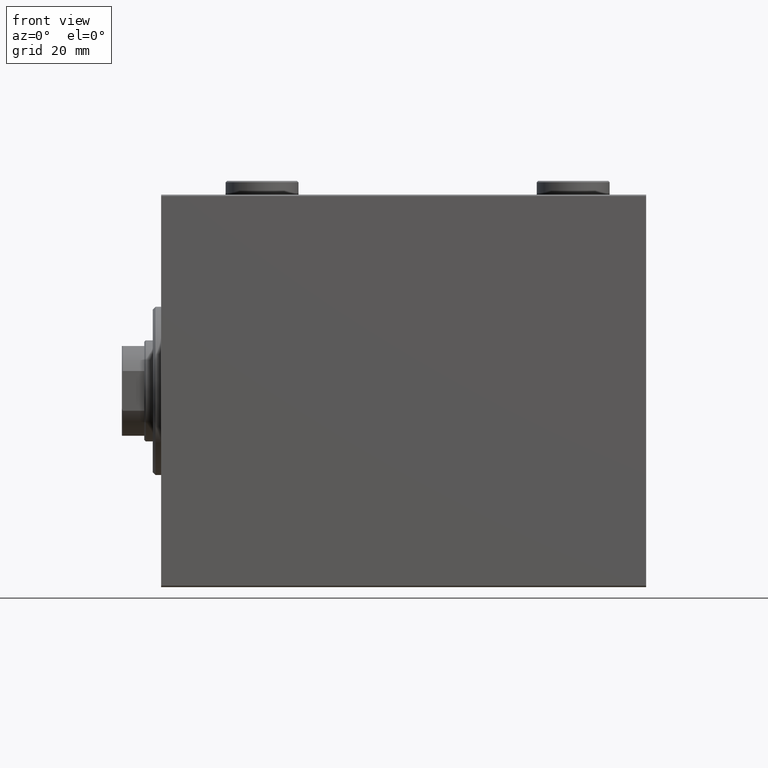
[diagram: clean part render]
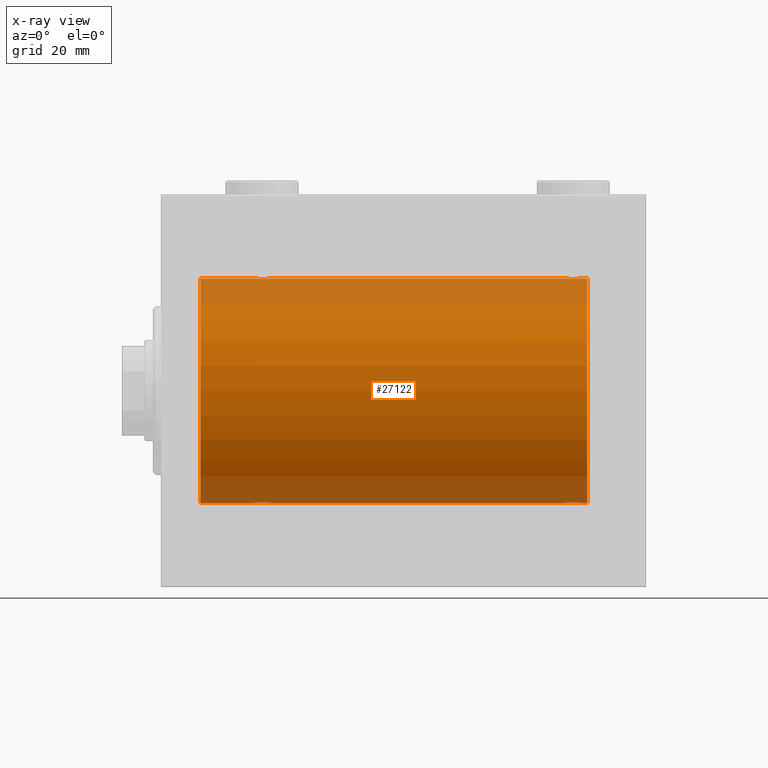
[diagram: x-ray — body ghosted, one internal face saturated and labeled with its STEP entity id]
A machine part, front view, then the same camera in x-ray: the body is ghosted and one INTERNAL B-rep face — a face not visible from any outside direction — is saturated and labeled: STEP entity #27122.
In plain terms, the highlighted cylindrical surface (partial cylindrical patch) has radius 40 mm, axis along (-1, -0, -0).
Its self-contained STEP definition (entity closure, byte-faithful):
#136 = CARTESIAN_POINT ( 'NONE',  ( 146.7995871398080112, -2.999840380514742666, 39.88735335562825668 ) ) ;
#158 = DIRECTION ( 'NONE',  ( -1.000000000000000000, -0.000000000000000000, -0.000000000000000000 ) ) ;
#220 = ORIENTED_EDGE ( 'NONE', *, *, #1079, .T. ) ;
#810 = CARTESIAN_POINT ( 'NONE',  ( 149.9202617499165342, -0.7903958539027363672, 39.99381900068937767 ) ) ;
#1079 = EDGE_CURVE ( 'NONE', #20565, #22216, #36720, .T. ) ;
#1498 = CARTESIAN_POINT ( 'NONE',  ( 150.0000000000000284, -0.3964922677423700081, 40.00000000000001421 ) ) ;
#1619 = DIRECTION ( 'NONE',  ( -1.000000000000000000, -0.000000000000000000, -0.000000000000000000 ) ) ;
#1936 = CARTESIAN_POINT ( 'NONE',  ( 38.25829670320502629, -1.984537326394305801, 39.95097977400578060 ) ) ;
#2045 = CARTESIAN_POINT ( 'NONE',  ( 38.99999999999999289, -0.1957844162750510819, -40.00000000000000711 ) ) ;
#2278 = CARTESIAN_POINT ( 'NONE',  ( 35.03510674146484405, -2.847401743820449305, -39.89859630624607689 ) ) ;
#2502 = CARTESIAN_POINT ( 'NONE',  ( 35.80439468926913804, -3.000157693440631324, -39.88732948994960026 ) ) ;
#2623 = CARTESIAN_POINT ( 'NONE',  ( 38.60188728128492386, -1.506322235190783232, 39.97196309111974699 ) ) ;
#2726 = CARTESIAN_POINT ( 'NONE',  ( 37.98461447812278635, -2.258217541132897743, -39.93644519243654400 ) ) ;
#3141 = CARTESIAN_POINT ( 'NONE',  ( 148.9813627951423030, -2.261082456166709775, 39.93628274425758207 ) ) ;
#3230 = CARTESIAN_POINT ( 'NONE',  ( 145.6714635525370625, -2.696981015661925163, -39.90904630908467965 ) ) ;
#3456 = CARTESIAN_POINT ( 'NONE',  ( 149.8466527301314102, -0.9668189122103265642, -39.98872185468383122 ) ) ;
#3460 = CARTESIAN_POINT ( 'NONE',  ( 150.0000000000000284, 1.446721683758770418E-15, 40.00000000000000000 ) ) ;
#4222 = VECTOR ( 'NONE', #41917, 1000.000000000000000 ) ;
#4645 = ORIENTED_EDGE ( 'NONE', *, *, #29073, .T. ) ;
#4999 = CARTESIAN_POINT ( 'NONE',  ( 39.00000000000000000, 4.898587181754971267E-15, -40.00000000000000000 ) ) ;
#5187 = CARTESIAN_POINT ( 'NONE',  ( 33.39566400087915810, -1.502129635934004614, 39.97212271185186694 ) ) ;
#5734 = CARTESIAN_POINT ( 'NONE',  ( 36.77869523415743913, -2.903766417398228938, -39.89448096967571900 ) ) ;
#5742 = DIRECTION ( 'NONE',  ( -1.000000000000000000, -0.000000000000000000, -0.000000000000000000 ) ) ;
#6009 = CARTESIAN_POINT ( 'NONE',  ( 144.7417032967949808, -1.984537326394312906, -39.95097977400578770 ) ) ;
#6427 = CARTESIAN_POINT ( 'NONE',  ( 38.26097616994740491, -1.981471132463162643, -39.95113231465139592 ) ) ;
#6619 = CARTESIAN_POINT ( 'NONE',  ( 145.0153855218772208, -2.258217541132898631, 39.93644519243653690 ) ) ;
#6675 = DIRECTION ( 'NONE',  ( 0.000000000000000000, 0.000000000000000000, 1.000000000000000000 ) ) ;
#6932 = CARTESIAN_POINT ( 'NONE',  ( 144.3981127187151685, -1.506322235190792780, -39.97196309111976831 ) ) ;
#7075 = CARTESIAN_POINT ( 'NONE',  ( 144.3027865941912182, -1.327859336864145590, 39.97836169682017982 ) ) ;
#7154 = CARTESIAN_POINT ( 'NONE',  ( 144.0000000000000284, -8.638112143271993746E-15, -40.00000000000000000 ) ) ;
#7199 = AXIS2_PLACEMENT_3D ( 'NONE', #20037, #13353, #34112 ) ;
#7308 = CARTESIAN_POINT ( 'NONE',  ( 144.6149239908465063, -1.830402106103516280, 39.95843610133492518 ) ) ;
#7553 = LINE ( 'NONE', #14709, #30997 ) ;
#7621 = ORIENTED_EDGE ( 'NONE', *, *, #38939, .T. ) ;
#7754 = CARTESIAN_POINT ( 'NONE',  ( 149.6018872812850020, -1.506322235190787895, 39.97196309111976831 ) ) ;
#8001 = DIRECTION ( 'NONE',  ( 0.000000000000000000, 0.000000000000000000, 1.000000000000000000 ) ) ;
#8433 = CARTESIAN_POINT ( 'NONE',  ( 149.3825168091146622, -1.833695109615722352, 39.95828327492363030 ) ) ;
#8884 = CARTESIAN_POINT ( 'NONE',  ( 33.15334726986859692, -0.9668189122103387767, 39.98872185468385254 ) ) ;
#9022 = B_SPLINE_CURVE_WITH_KNOTS ( 'NONE', 3,
 ( #30563, #33796, #41431, #16254, #8884, #36820, #5187, #44450, #22972, #30337, #40975, #19277, #44679, #40750, #19499, #37493, #33352, #12349, #29887, #13031, #26422, #26882, #12803, #23650, #40527, #1936, #19953, #2623, #34259, #16710, #27109, #34027 ),
 .UNSPECIFIED., .F., .F.,
 ( 4, 2, 2, 2, 2, 2, 2, 2, 2, 2, 2, 2, 2, 2, 2, 4 ),
 ( 0.009382660366305105304, 0.009968941372944142842, 0.01055522237958318038, 0.01114150338622221965, 0.01172778439286125719, 0.01231406539950029473, 0.01290034640613933400, 0.01348662741277837154, 0.01407290841941740908, 0.01465918942605644835, 0.01524547043269548416, 0.01583175143933452517, 0.01641803244597356271, 0.01700431345261260024, 0.01759059445925163778, 0.01876315647252971286 ),
 .UNSPECIFIED. ) ;
#9896 = CARTESIAN_POINT ( 'NONE',  ( 38.38507600915353635, -1.830402106103512505, -39.95843610133493229 ) ) ;
#9932 = CARTESIAN_POINT ( 'NONE',  ( 149.9810187711093192, -0.3904143323715896785, -39.99856256910220509 ) ) ;
#10388 = CARTESIAN_POINT ( 'NONE',  ( 148.5044308291346908, -2.602909538701760006, -39.91537030566259148 ) ) ;
#10537 = CARTESIAN_POINT ( 'NONE',  ( 149.2582967032050760, -1.984537326394308909, 39.95097977400577349 ) ) ;
#10619 = CARTESIAN_POINT ( 'NONE',  ( 146.0351067414649151, -2.847401743820456854, -39.89859630624609110 ) ) ;
#10995 = CARTESIAN_POINT ( 'NONE',  ( 144.0957482634864846, -0.7773146824711021363, 39.99291453282343412 ) ) ;
#11379 = CARTESIAN_POINT ( 'NONE',  ( 32.99999999999999289, -1.483452932268112700E-23, 40.00000000000000000 ) ) ;
#11579 = EDGE_LOOP ( 'NONE', ( #22682, #27219, #38944, #220, #40636, #45298, #4645, #40605, #7621, #14097, #41951, #26354 ) ) ;
#11856 = DIRECTION ( 'NONE',  ( -1.000000000000000000, -0.000000000000000000, -0.000000000000000000 ) ) ;
#12165 = CARTESIAN_POINT ( 'NONE',  ( 152.0000000000000000, 4.898587196589413026E-15, -40.00000000000000000 ) ) ;
#12349 = CARTESIAN_POINT ( 'NONE',  ( 36.19560531073086906, -3.000157693440643758, 39.88732948994960026 ) ) ;
#12584 = CARTESIAN_POINT ( 'NONE',  ( 13.99999999999998401, 0.000000000000000000, 40.00000000000000000 ) ) ;
#12803 = CARTESIAN_POINT ( 'NONE',  ( 37.50088468404035069, -2.604941918888315833, 39.91523680494983495 ) ) ;
#13031 = CARTESIAN_POINT ( 'NONE',  ( 36.77455678826341057, -2.904869018727228358, 39.89440043036668015 ) ) ;
#13334 = CARTESIAN_POINT ( 'NONE',  ( 152.0000000000000000, 4.898587196589413026E-15, -40.00000000000000000 ) ) ;
#13353 = DIRECTION ( 'NONE',  ( -1.000000000000000000, 0.000000000000000000, 0.000000000000000000 ) ) ;
#13552 = CARTESIAN_POINT ( 'NONE',  ( 147.1956053107309685, -3.000157693440639761, 39.88732948994960736 ) ) ;
#13601 = CARTESIAN_POINT ( 'NONE',  ( 33.61748319088535908, -1.833695109615714802, -39.95828327492363741 ) ) ;
#13769 = LINE ( 'NONE', #16994, #34558 ) ;
#13862 = CARTESIAN_POINT ( 'NONE',  ( 147.3952248345357816, -2.980272303779548881, -39.88883864243168631 ) ) ;
#14008 = CARTESIAN_POINT ( 'NONE',  ( 145.6677573113414326, -2.695129988695745826, 39.90917164320281074 ) ) ;
#14097 = ORIENTED_EDGE ( 'NONE', *, *, #19055, .F. ) ;
#14238 = CARTESIAN_POINT ( 'NONE',  ( 144.0000000000000284, -1.482387970046064334E-23, 40.00000000000000000 ) ) ;
#14709 = CARTESIAN_POINT ( 'NONE',  ( 152.0000000000000000, 4.898587196589413026E-15, -40.00000000000000000 ) ) ;
#15355 = CARTESIAN_POINT ( 'NONE',  ( 150.0000000000000284, 1.446721683758770418E-15, 40.00000000000000000 ) ) ;
#15810 = B_SPLINE_CURVE_WITH_KNOTS ( 'NONE', 3,
 ( #14238, #17922, #31997, #10995, #31308, #7075, #31078, #7308, #45192, #6619, #31534, #21158, #14008, #25078, #17690, #20466, #136, #13552, #27622, #41715, #35463, #24157, #20707, #28083, #3141, #10537, #8433, #7754, #32447, #810, #1498, #15355 ),
 .UNSPECIFIED., .F., .F.,
 ( 4, 2, 2, 2, 2, 2, 2, 2, 2, 2, 2, 2, 2, 2, 2, 4 ),
 ( 0.009382660366305094896, 0.009968941372944130699, 0.01055522237958316650, 0.01114150338622220404, 0.01172778439286123985, 0.01231406539950027565, 0.01290034640613930972, 0.01348662741277834379, 0.01407290841941737959, 0.01465918942605641540, 0.01524547043269544946, 0.01583175143933448353, 0.01641803244597352107, 0.01700431345261255514, 0.01759059445925158921, 0.01876315647252969204 ),
 .UNSPECIFIED. ) ;
#16029 = EDGE_CURVE ( 'NONE', #44920, #35489, #15810, .T. ) ;
#16062 = LINE ( 'NONE', #12165, #17769 ) ;
#16133 = CARTESIAN_POINT ( 'NONE',  ( 38.90425173651351543, -0.7773146824710984726, -39.99291453282344122 ) ) ;
#16254 = CARTESIAN_POINT ( 'NONE',  ( 33.09574826348647036, -0.7773146824711036906, 39.99291453282343412 ) ) ;
#16362 = CARTESIAN_POINT ( 'NONE',  ( 37.83044822822401443, -2.384933850258100119, -39.92898715513241115 ) ) ;
#16585 = CARTESIAN_POINT ( 'NONE',  ( 36.96938341894465907, -2.845855236045336856, -39.89870693240651178 ) ) ;
#16710 = CARTESIAN_POINT ( 'NONE',  ( 38.92026174991647025, -0.7903958539027386987, 39.99381900068935636 ) ) ;
#16819 = CARTESIAN_POINT ( 'NONE',  ( 36.39522483453576029, -2.980272303779541332, -39.88883864243169342 ) ) ;
#16855 = CARTESIAN_POINT ( 'NONE',  ( 150.0000000000000284, 4.898587181765620889E-15, -40.00000000000000000 ) ) ;
#16866 = CARTESIAN_POINT ( 'NONE',  ( 144.0000000000000284, -8.638112143271993746E-15, -40.00000000000000000 ) ) ;
#16994 = CARTESIAN_POINT ( 'NONE',  ( 152.0000000000000000, 0.000000000000000000, 40.00000000000000000 ) ) ;
#16997 = VERTEX_POINT ( 'NONE', #12584 ) ;
#17049 = CARTESIAN_POINT ( 'NONE',  ( 33.74170329679496660, -1.984537326394300250, -39.95097977400577349 ) ) ;
#17083 = CARTESIAN_POINT ( 'NONE',  ( 149.3850760091536642, -1.830402106103521831, -39.95843610133494650 ) ) ;
#17314 = CARTESIAN_POINT ( 'NONE',  ( 148.9846144781228929, -2.258217541132900852, -39.93644519243655111 ) ) ;
#17375 = B_SPLINE_CURVE_WITH_KNOTS ( 'NONE', 3,
 ( #23295, #2045, #40853, #16133, #38064, #37372, #41536, #9896, #6427, #2726, #16362, #30443, #26991, #16585, #5734, #16819, #30662, #2502, #44781, #33909, #2278, #23528, #27443, #23984, #20520, #17049, #13601, #27671, #35683, #32894, #28980, #21832 ),
 .UNSPECIFIED., .F., .F.,
 ( 4, 2, 2, 2, 2, 2, 2, 2, 2, 2, 2, 2, 2, 2, 2, 4 ),
 ( 0.009382660366305110508, 0.009968941372944146312, 0.01055522237958318212, 0.01114150338622221792, 0.01172778439286125372, 0.01231406539950028953, 0.01290034640613932533, 0.01348662741277836113, 0.01407290841941739694, 0.01465918942605643274, 0.01524547043269546855, 0.01583175143933450435, 0.01641803244597354189, 0.01700431345261257596, 0.01759059445925161003, 0.01876315647252968163 ),
 .UNSPECIFIED. ) ;
#17543 = CARTESIAN_POINT ( 'NONE',  ( 144.0797382500836079, -0.7903958539027432506, -39.99381900068937767 ) ) ;
#17690 = CARTESIAN_POINT ( 'NONE',  ( 146.2213047658425467, -2.903766417398230271, 39.89448096967571189 ) ) ;
#17769 = VECTOR ( 'NONE', #30149, 1000.000000000000000 ) ;
#17922 = CARTESIAN_POINT ( 'NONE',  ( 144.0000000000000284, -0.1957844162750525807, 40.00000000000000000 ) ) ;
#18332 = AXIS2_PLACEMENT_3D ( 'NONE', #24214, #5742, #6675 ) ;
#18734 = VERTEX_POINT ( 'NONE', #32924 ) ;
#19055 = EDGE_CURVE ( 'NONE', #44920, #21915, #24598, .T. ) ;
#19127 = CIRCLE ( 'NONE', #27993, 40.00000000000000000 ) ;
#19277 = CARTESIAN_POINT ( 'NONE',  ( 34.49556917086533758, -2.602909538701760006, 39.91537030566259148 ) ) ;
#19499 = CARTESIAN_POINT ( 'NONE',  ( 35.22130476584258219, -2.903766417398241373, 39.89448096967571189 ) ) ;
#19528 = EDGE_CURVE ( 'NONE', #28233, #35667, #23439, .T. ) ;
#19838 = CYLINDRICAL_SURFACE ( 'NONE', #18332, 40.00000000000000000 ) ;
#19953 = CARTESIAN_POINT ( 'NONE',  ( 38.38251680911464803, -1.833695109615718355, 39.95828327492363741 ) ) ;
#20037 = CARTESIAN_POINT ( 'NONE',  ( 152.0000000000000000, 0.000000000000000000, 0.000000000000000000 ) ) ;
#20466 = CARTESIAN_POINT ( 'NONE',  ( 146.6047751654642468, -2.980272303779546217, 39.88883864243170052 ) ) ;
#20520 = CARTESIAN_POINT ( 'NONE',  ( 34.01863720485770415, -2.261082456166700005, -39.93628274425758917 ) ) ;
#20556 = CARTESIAN_POINT ( 'NONE',  ( 148.8304482282240713, -2.384933850258111221, -39.92898715513241825 ) ) ;
#20565 = VERTEX_POINT ( 'NONE', #16866 ) ;
#20707 = CARTESIAN_POINT ( 'NONE',  ( 148.5008846840404146, -2.604941918888313612, 39.91523680494984916 ) ) ;
#20791 = CARTESIAN_POINT ( 'NONE',  ( 146.6089030749067490, -2.980812880639900353, -39.88879797994690080 ) ) ;
#21158 = CARTESIAN_POINT ( 'NONE',  ( 145.4955691708653092, -2.602909538701757342, 39.91537030566259858 ) ) ;
#21832 = CARTESIAN_POINT ( 'NONE',  ( 32.99999999999999289, 4.605585004310627937E-15, -40.00000000000000000 ) ) ;
#21915 = VERTEX_POINT ( 'NONE', #42037 ) ;
#21924 = EDGE_CURVE ( 'NONE', #37930, #20565, #33098, .T. ) ;
#22216 = VERTEX_POINT ( 'NONE', #4999 ) ;
#22247 = LINE ( 'NONE', #32856, #23538 ) ;
#22682 = ORIENTED_EDGE ( 'NONE', *, *, #19528, .F. ) ;
#22972 = CARTESIAN_POINT ( 'NONE',  ( 33.73902383005257377, -1.981471132463168416, 39.95113231465138881 ) ) ;
#23295 = CARTESIAN_POINT ( 'NONE',  ( 39.00000000000000000, 4.898587181754971267E-15, -40.00000000000000000 ) ) ;
#23439 = CIRCLE ( 'NONE', #7199, 40.00000000000000000 ) ;
#23528 = CARTESIAN_POINT ( 'NONE',  ( 34.67146355253704826, -2.696981015661917613, -39.90904630908468675 ) ) ;
#23538 = VECTOR ( 'NONE', #11856, 1000.000000000000000 ) ;
#23650 = CARTESIAN_POINT ( 'NONE',  ( 37.82690184632411246, -2.387636253591820079, 39.92882473497731866 ) ) ;
#23984 = CARTESIAN_POINT ( 'NONE',  ( 34.17309815367588754, -2.387636253591812974, -39.92882473497732576 ) ) ;
#24157 = CARTESIAN_POINT ( 'NONE',  ( 148.3285364474630228, -2.696981015661923387, 39.90904630908469386 ) ) ;
#24214 = CARTESIAN_POINT ( 'NONE',  ( 152.0000000000000000, 0.000000000000000000, 0.000000000000000000 ) ) ;
#24249 = CARTESIAN_POINT ( 'NONE',  ( 147.2004128601920740, -2.999840380514743998, -39.88735335562825668 ) ) ;
#24478 = CARTESIAN_POINT ( 'NONE',  ( 145.0186372048577823, -2.261082456166712440, -39.93628274425757496 ) ) ;
#24598 = LINE ( 'NONE', #38685, #4222 ) ;
#24931 = CARTESIAN_POINT ( 'NONE',  ( 144.0000000000000284, -0.3964922677423805553, -40.00000000000000000 ) ) ;
#24995 = CARTESIAN_POINT ( 'NONE',  ( 144.0000000000000284, -1.482387970046064334E-23, 40.00000000000000000 ) ) ;
#25078 = CARTESIAN_POINT ( 'NONE',  ( 146.0306165810553409, -2.845855236045348402, 39.89870693240650468 ) ) ;
#26354 = ORIENTED_EDGE ( 'NONE', *, *, #28814, .F. ) ;
#26422 = CARTESIAN_POINT ( 'NONE',  ( 36.96489325853514174, -2.847401743820462183, 39.89859630624607689 ) ) ;
#26513 = EDGE_CURVE ( 'NONE', #22216, #32528, #17375, .T. ) ;
#26882 = CARTESIAN_POINT ( 'NONE',  ( 37.32853644746295885, -2.696981015661930936, 39.90904630908465833 ) ) ;
#26991 = CARTESIAN_POINT ( 'NONE',  ( 37.33224268865864559, -2.695129988695729839, -39.90917164320280364 ) ) ;
#27109 = CARTESIAN_POINT ( 'NONE',  ( 39.00000000000000711, -0.3964922677423692865, 40.00000000000000711 ) ) ;
#27122 = ADVANCED_FACE ( 'NONE', ( #34832 ), #19838, .F. ) ;
#27219 = ORIENTED_EDGE ( 'NONE', *, *, #43478, .T. ) ;
#27443 = CARTESIAN_POINT ( 'NONE',  ( 34.49911531595966352, -2.604941918888306507, -39.91523680494982784 ) ) ;
#27622 = CARTESIAN_POINT ( 'NONE',  ( 147.3910969250933931, -2.980812880639897688, 39.88879797994690080 ) ) ;
#27671 = CARTESIAN_POINT ( 'NONE',  ( 33.39811271871507614, -1.506322235190781456, -39.97196309111974699 ) ) ;
#27936 = CARTESIAN_POINT ( 'NONE',  ( 145.1730981536759373, -2.387636253591822300, -39.92882473497733287 ) ) ;
#27993 = AXIS2_PLACEMENT_3D ( 'NONE', #36615, #29229, #8001 ) ;
#28083 = CARTESIAN_POINT ( 'NONE',  ( 148.8269018463241480, -2.387636253591820079, 39.92882473497732576 ) ) ;
#28163 = CARTESIAN_POINT ( 'NONE',  ( 150.0000000000000000, -0.1957844162750470851, -39.99999999999999289 ) ) ;
#28233 = VERTEX_POINT ( 'NONE', #13334 ) ;
#28814 = EDGE_CURVE ( 'NONE', #35667, #35489, #22247, .T. ) ;
#28980 = CARTESIAN_POINT ( 'NONE',  ( 32.99999999999998579, -0.3964922677423637909, -39.99999999999998579 ) ) ;
#29073 = EDGE_CURVE ( 'NONE', #18734, #16997, #19127, .T. ) ;
#29229 = DIRECTION ( 'NONE',  ( -1.000000000000000000, 0.000000000000000000, 0.000000000000000000 ) ) ;
#29887 = CARTESIAN_POINT ( 'NONE',  ( 36.39109692509333627, -2.980812880639903906, 39.88879797994688658 ) ) ;
#30149 = DIRECTION ( 'NONE',  ( -1.000000000000000000, -0.000000000000000000, -0.000000000000000000 ) ) ;
#30337 = CARTESIAN_POINT ( 'NONE',  ( 34.01538552187719233, -2.258217541132905293, 39.93644519243653690 ) ) ;
#30443 = CARTESIAN_POINT ( 'NONE',  ( 37.50443082913466242, -2.602909538701748016, -39.91537030566259148 ) ) ;
#30563 = CARTESIAN_POINT ( 'NONE',  ( 32.99999999999999289, -1.483452932268112700E-23, 40.00000000000000000 ) ) ;
#30662 = CARTESIAN_POINT ( 'NONE',  ( 36.20041286019198168, -2.999840380514735116, -39.88735335562824957 ) ) ;
#30940 = CARTESIAN_POINT ( 'NONE',  ( 149.6043359991208490, -1.502129635934011054, -39.97212271185185273 ) ) ;
#30997 = VECTOR ( 'NONE', #158, 1000.000000000000000 ) ;
#31078 = CARTESIAN_POINT ( 'NONE',  ( 144.3956640008792078, -1.502129635934003948, 39.97212271185186694 ) ) ;
#31162 = CARTESIAN_POINT ( 'NONE',  ( 147.9693834189446591, -2.845855236045351067, -39.89870693240651178 ) ) ;
#31308 = CARTESIAN_POINT ( 'NONE',  ( 144.1533472698686182, -0.9668189122103342248, 39.98872185468384544 ) ) ;
#31391 = CARTESIAN_POINT ( 'NONE',  ( 147.7786952341575386, -2.903766417398233823, -39.89448096967571900 ) ) ;
#31534 = CARTESIAN_POINT ( 'NONE',  ( 145.1695517717760424, -2.384933850258109445, 39.92898715513240404 ) ) ;
#31997 = CARTESIAN_POINT ( 'NONE',  ( 144.0189812288907660, -0.3904143323715967839, 39.99856256910221219 ) ) ;
#32447 = CARTESIAN_POINT ( 'NONE',  ( 149.6953700770844193, -1.331594428131642527, 39.97823692017210107 ) ) ;
#32528 = VERTEX_POINT ( 'NONE', #38515 ) ;
#32728 = EDGE_CURVE ( 'NONE', #32528, #18734, #16062, .T. ) ;
#32856 = CARTESIAN_POINT ( 'NONE',  ( 152.0000000000000000, 0.000000000000000000, 40.00000000000000000 ) ) ;
#32894 = CARTESIAN_POINT ( 'NONE',  ( 33.07973825008353685, -0.7903958539027382546, -39.99381900068937767 ) ) ;
#32924 = CARTESIAN_POINT ( 'NONE',  ( 13.99999999999998401, 4.898587196589413026E-15, -40.00000000000000000 ) ) ;
#33098 = B_SPLINE_CURVE_WITH_KNOTS ( 'NONE', 3,
 ( #16855, #28163, #9932, #41800, #3456, #45281, #30940, #17083, #42261, #17314, #20556, #10388, #45055, #31162, #31391, #13862, #24249, #38335, #20791, #34861, #10619, #3230, #45509, #27936, #24478, #6009, #37646, #6932, #35086, #17543, #24931, #7154 ),
 .UNSPECIFIED., .F., .F.,
 ( 4, 2, 2, 2, 2, 2, 2, 2, 2, 2, 2, 2, 2, 2, 2, 4 ),
 ( 0.009382660366305091426, 0.009968941372944125495, 0.01055522237958316130, 0.01114150338622219710, 0.01172778439286123117, 0.01231406539950026524, 0.01290034640613930104, 0.01348662741277833685, 0.01407290841941737092, 0.01465918942605640499, 0.01524547043269544079, 0.01583175143933447659, 0.01641803244597351066, 0.01700431345261254473, 0.01759059445925158227, 0.01876315647252968163 ),
 .UNSPECIFIED. ) ;
#33352 = CARTESIAN_POINT ( 'NONE',  ( 35.79958713980802543, -2.999840380514749327, 39.88735335562824247 ) ) ;
#33796 = CARTESIAN_POINT ( 'NONE',  ( 32.99999999999997158, -0.1957844162750552452, 40.00000000000000000 ) ) ;
#33909 = CARTESIAN_POINT ( 'NONE',  ( 35.22544321173658943, -2.904869018727217700, -39.89440043036668726 ) ) ;
#34027 = CARTESIAN_POINT ( 'NONE',  ( 39.00000000000000000, 1.037715139942869821E-15, 40.00000000000000000 ) ) ;
#34112 = DIRECTION ( 'NONE',  ( 0.000000000000000000, 0.000000000000000000, 1.000000000000000000 ) ) ;
#34259 = CARTESIAN_POINT ( 'NONE',  ( 38.69537007708435539, -1.331594428131644747, 39.97823692017209396 ) ) ;
#34558 = VECTOR ( 'NONE', #38708, 1000.000000000000000 ) ;
#34832 = FACE_OUTER_BOUND ( 'NONE', #11579, .T. ) ;
#34861 = CARTESIAN_POINT ( 'NONE',  ( 146.2254432117366036, -2.904869018727222585, -39.89440043036668726 ) ) ;
#35086 = CARTESIAN_POINT ( 'NONE',  ( 144.3046299229157228, -1.331594428131648522, -39.97823692017211528 ) ) ;
#35463 = CARTESIAN_POINT ( 'NONE',  ( 147.9648932585351702, -2.847401743820454190, 39.89859630624609821 ) ) ;
#35489 = VERTEX_POINT ( 'NONE', #3460 ) ;
#35667 = VERTEX_POINT ( 'NONE', #45001 ) ;
#35683 = CARTESIAN_POINT ( 'NONE',  ( 33.30462992291564461, -1.331594428131640528, -39.97823692017208685 ) ) ;
#35924 = VECTOR ( 'NONE', #1619, 1000.000000000000000 ) ;
#36615 = CARTESIAN_POINT ( 'NONE',  ( 13.99999999999998401, 0.000000000000000000, 0.000000000000000000 ) ) ;
#36720 = LINE ( 'NONE', #39979, #35924 ) ;
#36820 = CARTESIAN_POINT ( 'NONE',  ( 33.30278659419118270, -1.327859336864150253, 39.97836169682017982 ) ) ;
#37096 = CARTESIAN_POINT ( 'NONE',  ( 150.0000000000000284, 4.898587181765620889E-15, -40.00000000000000000 ) ) ;
#37372 = CARTESIAN_POINT ( 'NONE',  ( 38.69721340580881730, -1.327859336864144035, -39.97836169682019403 ) ) ;
#37493 = CARTESIAN_POINT ( 'NONE',  ( 35.60477516546423260, -2.980272303779553766, 39.88883864243167920 ) ) ;
#37646 = CARTESIAN_POINT ( 'NONE',  ( 144.6174831908854230, -1.833695109615727015, -39.95828327492365162 ) ) ;
#37930 = VERTEX_POINT ( 'NONE', #37096 ) ;
#38064 = CARTESIAN_POINT ( 'NONE',  ( 38.84665273013138176, -0.9668189122103333366, -39.98872185468385254 ) ) ;
#38071 = EDGE_CURVE ( 'NONE', #38405, #16997, #13769, .T. ) ;
#38335 = CARTESIAN_POINT ( 'NONE',  ( 146.8043946892691451, -3.000157693440640205, -39.88732948994960736 ) ) ;
#38405 = VERTEX_POINT ( 'NONE', #11379 ) ;
#38515 = CARTESIAN_POINT ( 'NONE',  ( 32.99999999999999289, 4.605585004310627937E-15, -40.00000000000000000 ) ) ;
#38685 = CARTESIAN_POINT ( 'NONE',  ( 152.0000000000000000, 0.000000000000000000, 40.00000000000000000 ) ) ;
#38708 = DIRECTION ( 'NONE',  ( -1.000000000000000000, -0.000000000000000000, -0.000000000000000000 ) ) ;
#38939 = EDGE_CURVE ( 'NONE', #38405, #21915, #9022, .T. ) ;
#38944 = ORIENTED_EDGE ( 'NONE', *, *, #21924, .T. ) ;
#39979 = CARTESIAN_POINT ( 'NONE',  ( 152.0000000000000000, 4.898587196589413026E-15, -40.00000000000000000 ) ) ;
#40527 = CARTESIAN_POINT ( 'NONE',  ( 37.98136279514229585, -2.261082456166707111, 39.93628274425758207 ) ) ;
#40605 = ORIENTED_EDGE ( 'NONE', *, *, #38071, .F. ) ;
#40636 = ORIENTED_EDGE ( 'NONE', *, *, #26513, .T. ) ;
#40750 = CARTESIAN_POINT ( 'NONE',  ( 35.03061658105534804, -2.845855236045349734, 39.89870693240651889 ) ) ;
#40853 = CARTESIAN_POINT ( 'NONE',  ( 38.98101877110926239, -0.3904143323715931757, -39.99856256910221219 ) ) ;
#40975 = CARTESIAN_POINT ( 'NONE',  ( 34.16955177177597847, -2.384933850258112553, 39.92898715513240404 ) ) ;
#41431 = CARTESIAN_POINT ( 'NONE',  ( 33.01898122889073051, -0.3904143323715976166, 39.99856256910221219 ) ) ;
#41536 = CARTESIAN_POINT ( 'NONE',  ( 38.60433599912083480, -1.502129635934000396, -39.97212271185185273 ) ) ;
#41715 = CARTESIAN_POINT ( 'NONE',  ( 147.7745567882635100, -2.904869018727220364, 39.89440043036669437 ) ) ;
#41800 = CARTESIAN_POINT ( 'NONE',  ( 149.9042517365135154, -0.7773146824710949199, -39.99291453282344122 ) ) ;
#41917 = DIRECTION ( 'NONE',  ( -1.000000000000000000, -0.000000000000000000, -0.000000000000000000 ) ) ;
#41951 = ORIENTED_EDGE ( 'NONE', *, *, #16029, .T. ) ;
#42037 = CARTESIAN_POINT ( 'NONE',  ( 39.00000000000000000, 1.037715139942869821E-15, 40.00000000000000000 ) ) ;
#42261 = CARTESIAN_POINT ( 'NONE',  ( 149.2609761699475257, -1.981471132463164420, -39.95113231465140302 ) ) ;
#43478 = EDGE_CURVE ( 'NONE', #28233, #37930, #7553, .T. ) ;
#44450 = CARTESIAN_POINT ( 'NONE',  ( 33.61492399084646365, -1.830402106103518722, 39.95843610133494650 ) ) ;
#44679 = CARTESIAN_POINT ( 'NONE',  ( 34.66775731134134730, -2.695129988695744494, 39.90917164320281074 ) ) ;
#44781 = CARTESIAN_POINT ( 'NONE',  ( 35.60890307490667794, -2.980812880639892359, -39.88879797994688658 ) ) ;
#44920 = VERTEX_POINT ( 'NONE', #24995 ) ;
#45001 = CARTESIAN_POINT ( 'NONE',  ( 152.0000000000000000, 0.000000000000000000, 40.00000000000000000 ) ) ;
#45055 = CARTESIAN_POINT ( 'NONE',  ( 148.3322426886586527, -2.695129988695748491, -39.90917164320283916 ) ) ;
#45192 = CARTESIAN_POINT ( 'NONE',  ( 144.7390238300526164, -1.981471132463162643, 39.95113231465138171 ) ) ;
#45281 = CARTESIAN_POINT ( 'NONE',  ( 149.6972134058088670, -1.327859336864137374, -39.97836169682017271 ) ) ;
#45298 = ORIENTED_EDGE ( 'NONE', *, *, #32728, .T. ) ;
#45509 = CARTESIAN_POINT ( 'NONE',  ( 145.4991153159597275, -2.604941918888315833, -39.91523680494984916 ) ) ;